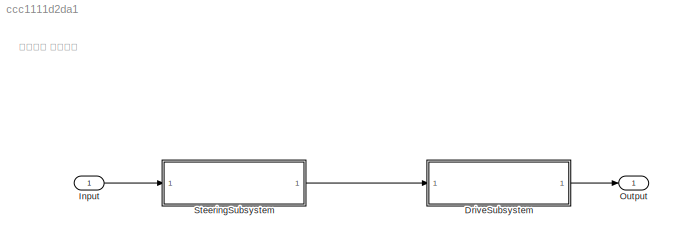
MODEL slx_ccc1111d2da1
KIND model
CONFIG AbsTol = auto
CONFIG EnableMultiTasking = off
CONFIG FixedStep = auto
CONFIG MaxStep = auto
CONFIG MinStep = auto
CONFIG RelTol = 1e-3
CONFIG SampleTimeConstraint = Unconstrained
CONFIG SolverName = VariableStepAuto
CONFIG StartTime = 0.0
CONFIG StopTime = 10.0
BLOCK [SubSystem] DriveSubsystem
  ReferencedSubsystem = DriveSubsystem
BLOCK [Inport] Input
BLOCK [Outport] Output
BLOCK [SubSystem] SteeringSubsystem
  ReferencedSubsystem = SteeringSubsystem
ANNOTATION (root): 독립조향 프로젝트
LINE DriveSubsystem:1 -> Output:1
LINE Input:1 -> SteeringSubsystem:1
LINE SteeringSubsystem:1 -> DriveSubsystem:1
